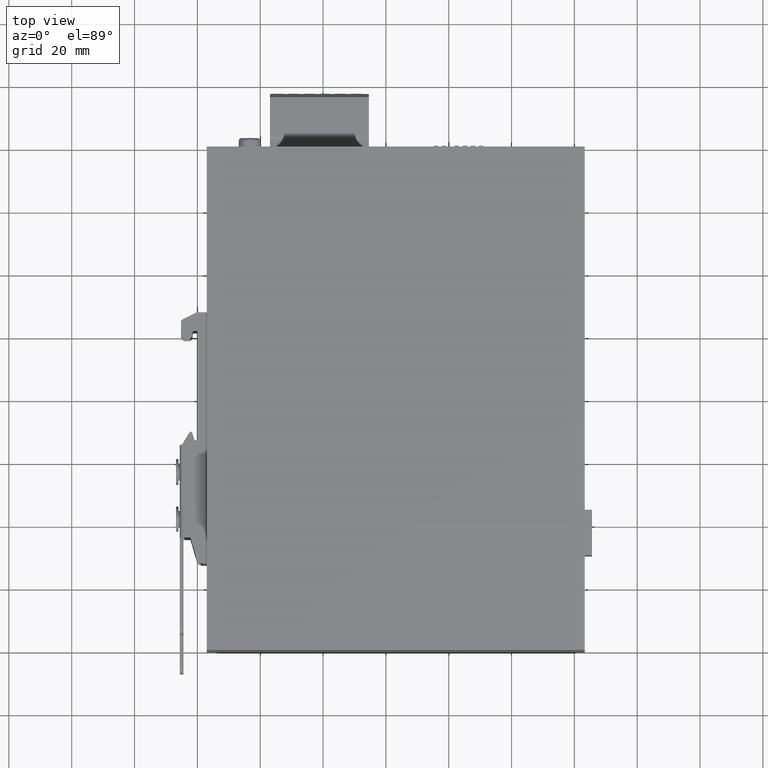
[diagram: clean part render]
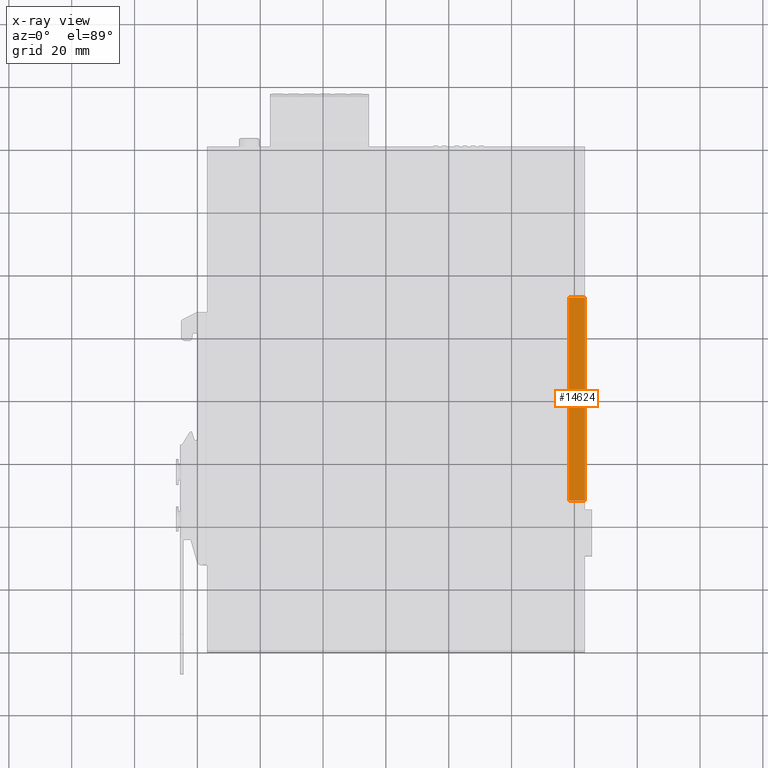
[diagram: x-ray — body ghosted, one internal face saturated and labeled with its STEP entity id]
A machine part, top view, then the same camera in x-ray: the body is ghosted and one INTERNAL B-rep face — a face not visible from any outside direction — is saturated and labeled: STEP entity #14624.
In plain terms, the highlighted planar face has unit normal (0, 0, 1).
Its self-contained STEP definition (entity closure, byte-faithful):
#1372 = FACE_OUTER_BOUND ( 'NONE', #15578, .T. ) ;
#2178 = VERTEX_POINT ( 'NONE', #11805 ) ;
#2441 = DIRECTION ( 'NONE',  ( 1.000000000000000000, 0.000000000000000000, -0.000000000000000000 ) ) ;
#3302 = LINE ( 'NONE', #13886, #7431 ) ;
#3974 = ORIENTED_EDGE ( 'NONE', *, *, #5650, .F. ) ;
#4088 = DIRECTION ( 'NONE',  ( 1.000000000000000000, 0.000000000000000000, -0.000000000000000000 ) ) ;
#4928 = CARTESIAN_POINT ( 'NONE',  ( 4.657480314960630530, 1.877952755905512028, 1.559055118110236338 ) ) ;
#5349 = CARTESIAN_POINT ( 'NONE',  ( 4.657480314960630530, 4.423228346456692606, 1.559055118110236338 ) ) ;
#5381 = EDGE_CURVE ( 'NONE', #7638, #2178, #13111, .T. ) ;
#5650 = EDGE_CURVE ( 'NONE', #13204, #7638, #3302, .T. ) ;
#7238 = AXIS2_PLACEMENT_3D ( 'NONE', #15893, #9520, #4088 ) ;
#7330 = DIRECTION ( 'NONE',  ( 0.000000000000000000, -1.000000000000000000, -0.000000000000000000 ) ) ;
#7431 = VECTOR ( 'NONE', #7330, 39.37007874015748143 ) ;
#7451 = ORIENTED_EDGE ( 'NONE', *, *, #14042, .F. ) ;
#7638 = VERTEX_POINT ( 'NONE', #4928 ) ;
#8131 = CARTESIAN_POINT ( 'NONE',  ( 4.854330708661417582, 0.000000000000000000, 1.559055118110236338 ) ) ;
#9474 = VECTOR ( 'NONE', #2441, 39.37007874015748143 ) ;
#9520 = DIRECTION ( 'NONE',  ( 0.000000000000000000, 0.000000000000000000, 1.000000000000000000 ) ) ;
#9567 = VERTEX_POINT ( 'NONE', #15217 ) ;
#9617 = DIRECTION ( 'NONE',  ( 0.000000000000000000, 1.000000000000000000, 0.000000000000000000 ) ) ;
#9829 = CARTESIAN_POINT ( 'NONE',  ( 4.657480314960630530, 4.423228346456692606, 1.559055118110236338 ) ) ;
#11805 = CARTESIAN_POINT ( 'NONE',  ( 4.854330708661417582, 1.877952755905512028, 1.559055118110236338 ) ) ;
#13111 = LINE ( 'NONE', #15642, #9474 ) ;
#13204 = VERTEX_POINT ( 'NONE', #5349 ) ;
#13851 = VECTOR ( 'NONE', #16214, 39.37007874015748143 ) ;
#13886 = CARTESIAN_POINT ( 'NONE',  ( 4.657480314960630530, 4.423228346456692606, 1.559055118110236338 ) ) ;
#14042 = EDGE_CURVE ( 'NONE', #9567, #13204, #16386, .T. ) ;
#14049 = ORIENTED_EDGE ( 'NONE', *, *, #14299, .F. ) ;
#14299 = EDGE_CURVE ( 'NONE', #2178, #9567, #17219, .T. ) ;
#14586 = PLANE ( 'NONE',  #7238 ) ;
#14624 = ADVANCED_FACE ( 'NONE', ( #1372 ), #14586, .F. ) ;
#15217 = CARTESIAN_POINT ( 'NONE',  ( 4.854330708661417582, 4.423228346456692606, 1.559055118110236338 ) ) ;
#15578 = EDGE_LOOP ( 'NONE', ( #16644, #3974, #7451, #14049 ) ) ;
#15642 = CARTESIAN_POINT ( 'NONE',  ( 4.657480314960630530, 1.877952755905512028, 1.559055118110236338 ) ) ;
#15890 = VECTOR ( 'NONE', #9617, 39.37007874015748143 ) ;
#15893 = CARTESIAN_POINT ( 'NONE',  ( 4.657480314960630530, 4.423228346456692606, 1.559055118110236338 ) ) ;
#16214 = DIRECTION ( 'NONE',  ( -1.000000000000000000, -0.000000000000000000, 0.000000000000000000 ) ) ;
#16386 = LINE ( 'NONE', #9829, #13851 ) ;
#16644 = ORIENTED_EDGE ( 'NONE', *, *, #5381, .F. ) ;
#17219 = LINE ( 'NONE', #8131, #15890 ) ;